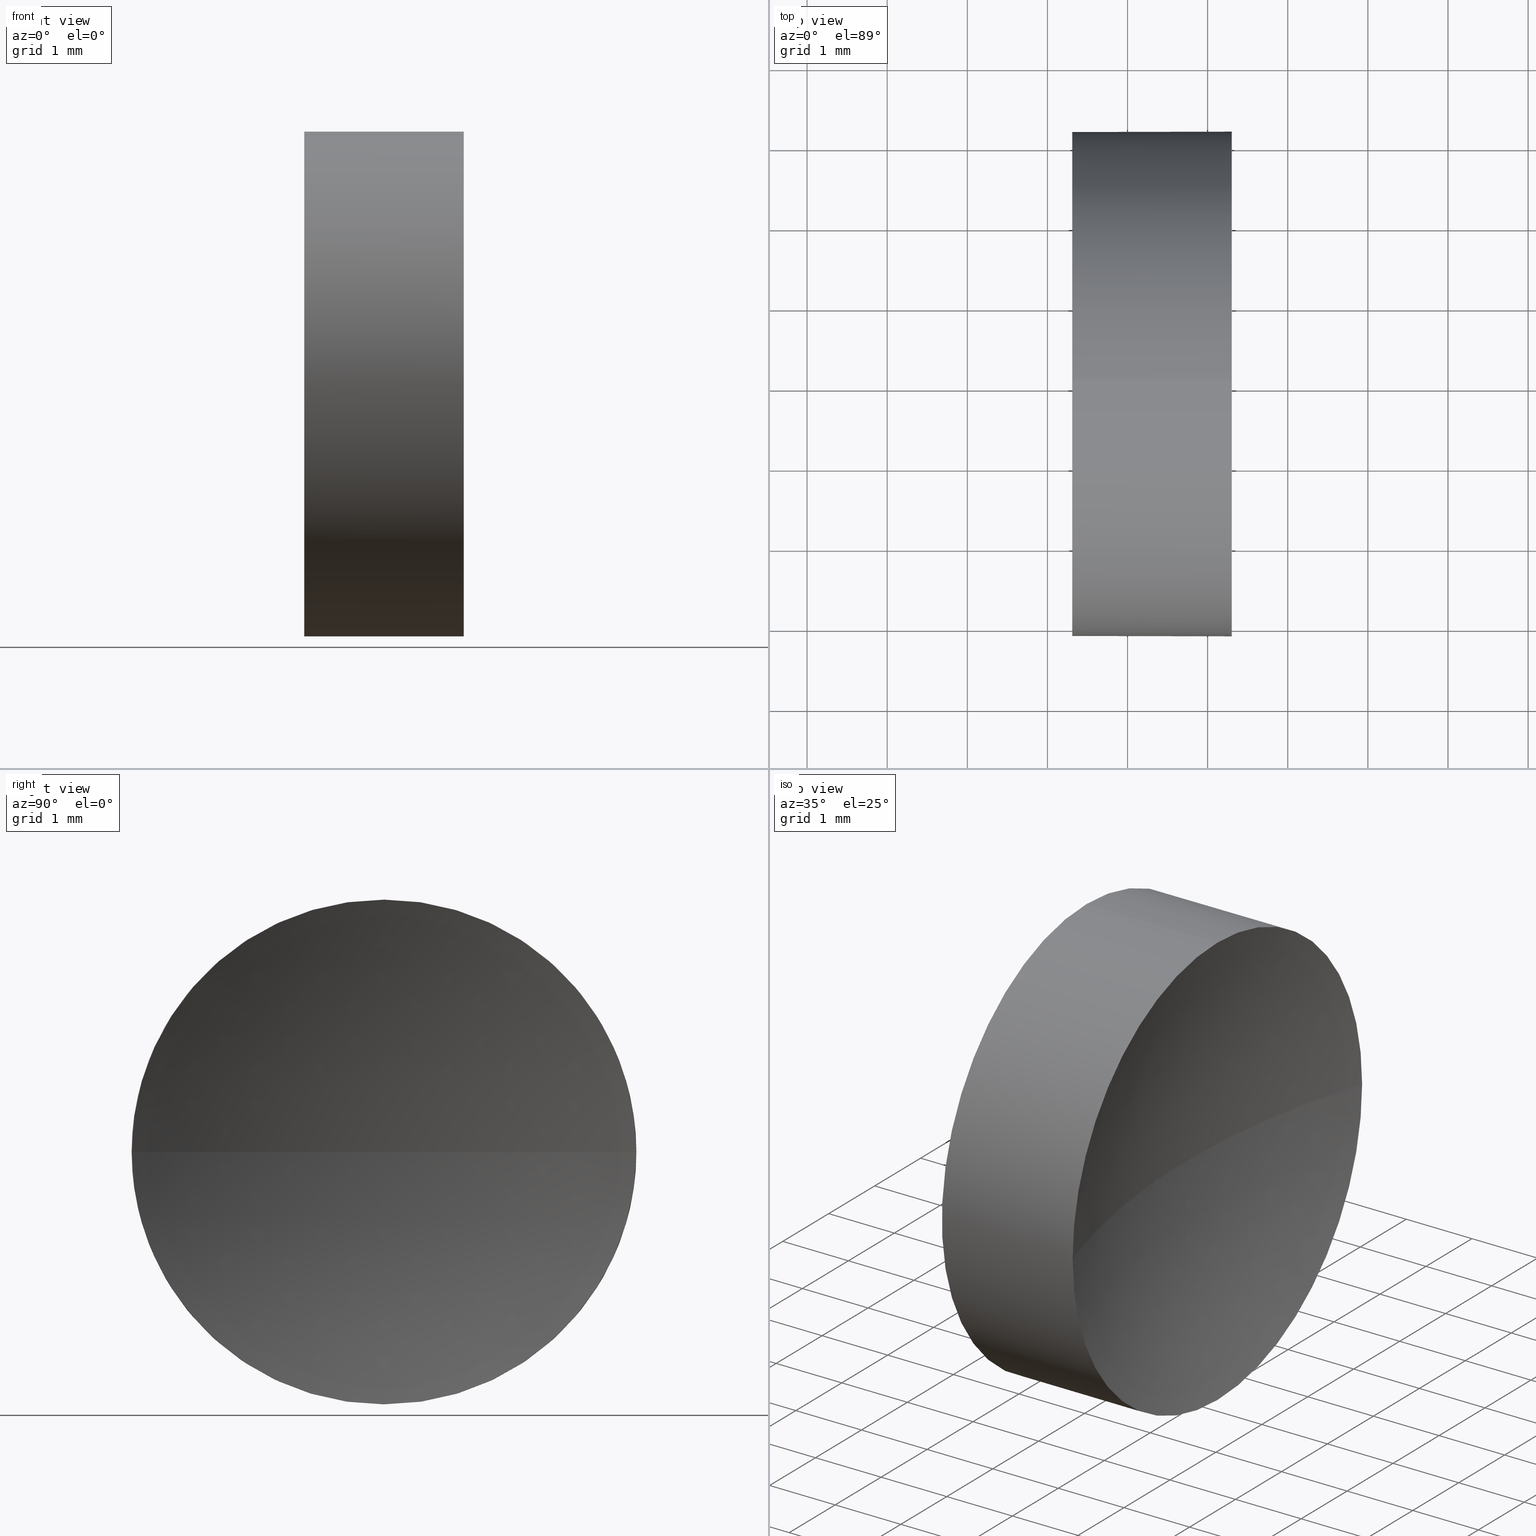
[diagram: canonical four-view strip — front | top / right | iso, engineering-drawing reading convention]
A machine part, canonical four-view strip (front | top / right | iso — engineering-drawing reading convention). The complete STEP part file that produces these views, byte-faithful:
ISO-10303-21;
HEADER;
FILE_DESCRIPTION (( 'STEP AP214' ),
    '1' );
FILE_NAME ('120127.STEP',
    '2019-06-19T01:57:57',
    ( '' ),
    ( '' ),
    'SwSTEP 2.0',
    'SolidWorks 2016',
    '' );
FILE_SCHEMA (( 'AUTOMOTIVE_DESIGN' ));
ENDSEC;

DATA;
#1 = ORIENTED_EDGE ( 'NONE', *, *, #137, .F. ) ;
#2 = CARTESIAN_POINT ( 'NONE',  ( 34.13926883257448700, 13.03112609140304900, 0.0000000000000000000 ) ) ;
#3 = UNCERTAINTY_MEASURE_WITH_UNIT (LENGTH_MEASURE( 1.000000000000000100E-005 ), #29, 'distance_accuracy_value', 'NONE');
#4 = ORIENTED_EDGE ( 'NONE', *, *, #108, .F. ) ;
#5 = DIRECTION ( 'NONE',  ( 0.0000000000000000000, 0.0000000000000000000, 1.000000000000000000 ) ) ;
#6 =( LENGTH_UNIT ( ) NAMED_UNIT ( * ) SI_UNIT ( .MILLI., .METRE. ) );
#7 =( LENGTH_UNIT ( ) NAMED_UNIT ( * ) SI_UNIT ( .MILLI., .METRE. ) );
#8 = DIRECTION ( 'NONE',  ( 0.0000000000000000000, -1.000000000000000000, 0.0000000000000000000 ) ) ;
#9 = UNCERTAINTY_MEASURE_WITH_UNIT (LENGTH_MEASURE( 1.000000000000000100E-005 ), #6, 'distance_accuracy_value', 'NONE');
#10 = PRESENTATION_STYLE_ASSIGNMENT (( #176 ) ) ;
#11 = VERTEX_POINT ( 'NONE', #36 ) ;
#12 = EDGE_CURVE ( 'NONE', #88, #11, #107, .T. ) ;
#13 = FACE_OUTER_BOUND ( 'NONE', #152, .T. ) ;
#14 = CIRCLE ( 'NONE', #125, 10.32999999999999800 ) ;
#15 = PRODUCT_DEFINITION_FORMATION_WITH_SPECIFIED_SOURCE ( '�κ�', '', #82, .NOT_KNOWN. ) ;
#16 = DIRECTION ( 'NONE',  ( 0.0000000000000000000, 0.0000000000000000000, 1.000000000000000000 ) ) ;
#17 = DIRECTION ( 'NONE',  ( 0.0000000000000000000, 0.0000000000000000000, -1.000000000000000000 ) ) ;
#18 = FILL_AREA_STYLE_COLOUR ( '', #169 ) ;
#19 = SURFACE_STYLE_FILL_AREA ( #142 ) ;
#20 = EDGE_CURVE ( 'NONE', #78, #88, #104, .T. ) ;
#21 = FILL_AREA_STYLE ('',( #177 ) ) ;
#22 = ADVANCED_FACE ( 'NONE', ( #13 ), #80, .T. ) ;
#23 = AXIS2_PLACEMENT_3D ( 'NONE', #51, #129, #5 ) ;
#24 = CARTESIAN_POINT ( 'NONE',  ( 34.13926883257448700, 13.03112609140304900, 0.0000000000000000000 ) ) ;
#25 = ORIENTED_EDGE ( 'NONE', *, *, #20, .T. ) ;
#26 = EDGE_CURVE ( 'NONE', #182, #69, #14, .T. ) ;
#27 = CARTESIAN_POINT ( 'NONE',  ( 24.30126090413694200, 13.03112609140304000, 0.0000000000000000000 ) ) ;
#28 = FACE_OUTER_BOUND ( 'NONE', #35, .T. ) ;
#29 =( LENGTH_UNIT ( ) NAMED_UNIT ( * ) SI_UNIT ( .MILLI., .METRE. ) );
#30 = DIRECTION ( 'NONE',  ( 0.0000000000000000000, -1.000000000000000000, -1.224646799147353200E-016 ) ) ;
#31 =( GEOMETRIC_REPRESENTATION_CONTEXT ( 3 ) GLOBAL_UNCERTAINTY_ASSIGNED_CONTEXT ( ( #9 ) ) GLOBAL_UNIT_ASSIGNED_CONTEXT ( ( #6, #145, #119 ) ) REPRESENTATION_CONTEXT ( 'NONE', 'WORKASPACE' ) );
#32 = DIRECTION ( 'NONE',  ( 0.0000000000000000000, 0.0000000000000000000, 1.000000000000000000 ) ) ;
#33 = ADVANCED_FACE ( 'NONE', ( #28 ), #87, .F. ) ;
#34 = SURFACE_STYLE_FILL_AREA ( #21 ) ;
#35 = EDGE_LOOP ( 'NONE', ( #166, #118 ) ) ;
#36 = CARTESIAN_POINT ( 'NONE',  ( 22.30926883257449200, 13.03112609140304000, -3.149999999999998100 ) ) ;
#37 = CARTESIAN_POINT ( 'NONE',  ( 20.68403063513288800, 13.03112609140304000, 0.0000000000000000000 ) ) ;
#38 = VECTOR ( 'NONE', #123, 1000.000000000000000 ) ;
#39 = EDGE_CURVE ( 'NONE', #182, #70, #60, .T. ) ;
#40 = CARTESIAN_POINT ( 'NONE',  ( 24.30126090413694200, 13.03112609140304000, 0.0000000000000000000 ) ) ;
#41 = DIRECTION ( 'NONE',  ( -1.000000000000000000, -0.0000000000000000000, -0.0000000000000000000 ) ) ;
#42 = EDGE_LOOP ( 'NONE', ( #143, #115, #186, #160 ) ) ;
#43 = EDGE_CURVE ( 'NONE', #78, #69, #133, .T. ) ;
#44 = DIRECTION ( 'NONE',  ( -1.000000000000000000, -0.0000000000000000000, -0.0000000000000000000 ) ) ;
#45 = CARTESIAN_POINT ( 'NONE',  ( 20.68403063513288800, 13.03112609140304000, 3.149999999999999900 ) ) ;
#46 = EDGE_LOOP ( 'NONE', ( #106, #173, #111, #149, #122 ) ) ;
#47 = DIRECTION ( 'NONE',  ( 0.0000000000000000000, 0.0000000000000000000, 1.000000000000000000 ) ) ;
#48 = ORIENTED_EDGE ( 'NONE', *, *, #43, .T. ) ;
#49 = COLOUR_RGB ( '',1.000000000000000000, 1.000000000000000000, 1.000000000000000000 ) ;
#50 = AXIS2_PLACEMENT_3D ( 'NONE', #68, #171, #17 ) ;
#51 = CARTESIAN_POINT ( 'NONE',  ( 24.30126090413694200, 13.03112609140304000, 0.0000000000000000000 ) ) ;
#52 = SPHERICAL_SURFACE ( 'NONE', #94, 10.32999999999999800 ) ;
#53 =( NAMED_UNIT ( * ) SI_UNIT ( $, .STERADIAN. ) SOLID_ANGLE_UNIT ( ) );
#54 = DIRECTION ( 'NONE',  ( -1.000000000000000000, -0.0000000000000000000, -0.0000000000000000000 ) ) ;
#55 = DIRECTION ( 'NONE',  ( 0.0000000000000000000, 0.0000000000000000000, 1.000000000000000000 ) ) ;
#56 = DIRECTION ( 'NONE',  ( -1.000000000000000000, -0.0000000000000000000, -0.0000000000000000000 ) ) ;
#57 = PRODUCT_DEFINITION_SHAPE ( 'NONE', 'NONE',  #132 ) ;
#58 = EDGE_CURVE ( 'NONE', #70, #78, #98, .T. ) ;
#59 = DIRECTION ( 'NONE',  ( -1.000000000000000000, -0.0000000000000000000, -0.0000000000000000000 ) ) ;
#60 = CIRCLE ( 'NONE', #134, 3.150000000000001700 ) ;
#61 = AXIS2_PLACEMENT_3D ( 'NONE', #37, #66, #16 ) ;
#62 = LINE ( 'NONE', #45, #95 ) ;
#63 = PRESENTATION_STYLE_ASSIGNMENT (( #113 ) ) ;
#64 = CIRCLE ( 'NONE', #71, 3.149999999999998100 ) ;
#65 = AXIS2_PLACEMENT_3D ( 'NONE', #144, #47, #184 ) ;
#66 = DIRECTION ( 'NONE',  ( -1.000000000000000000, -0.0000000000000000000, -0.0000000000000000000 ) ) ;
#67 = AXIS2_PLACEMENT_3D ( 'NONE', #120, #76, #180 ) ;
#68 = CARTESIAN_POINT ( 'NONE',  ( 22.30926883257449200, 13.03112609140304000, 0.0000000000000000000 ) ) ;
#69 = VERTEX_POINT ( 'NONE', #72 ) ;
#70 = VERTEX_POINT ( 'NONE', #100 ) ;
#71 = AXIS2_PLACEMENT_3D ( 'NONE', #140, #138, #175 ) ;
#72 = CARTESIAN_POINT ( 'NONE',  ( 23.80926883257448900, 13.03112609140304900, 0.0000000000000000000 ) ) ;
#73 =( NAMED_UNIT ( * ) PLANE_ANGLE_UNIT ( ) SI_UNIT ( $, .RADIAN. ) );
#74 = CARTESIAN_POINT ( 'NONE',  ( 24.30126090413694200, 13.03112609140304000, 0.0000000000000000000 ) ) ;
#75 = SHAPE_DEFINITION_REPRESENTATION ( #57, #151 ) ;
#76 = DIRECTION ( 'NONE',  ( 0.0000000000000000000, 0.0000000000000000000, 1.000000000000000000 ) ) ;
#77 = EDGE_CURVE ( 'NONE', #11, #96, #64, .T. ) ;
#78 = VERTEX_POINT ( 'NONE', #157 ) ;
#79 = CIRCLE ( 'NONE', #99, 3.150000000000001700 ) ;
#80 = CYLINDRICAL_SURFACE ( 'NONE', #61, 3.149999999999999900 ) ;
#81 = MECHANICAL_DESIGN_GEOMETRIC_PRESENTATION_REPRESENTATION (  '', ( #161 ), #93 ) ;
#82 = PRODUCT ( '120127', '120127', '', ( #116 ) ) ;
#83 = AXIS2_PLACEMENT_3D ( 'NONE', #163, #89, #32 ) ;
#84 = CARTESIAN_POINT ( 'NONE',  ( 20.68403063513288800, 13.03112609140304000, -3.149999999999999900 ) ) ;
#85 = ORIENTED_EDGE ( 'NONE', *, *, #58, .T. ) ;
#86 = CARTESIAN_POINT ( 'NONE',  ( 24.30126090413694200, 13.03112609140304000, -3.150000000000001200 ) ) ;
#87 = PLANE ( 'NONE',  #50 ) ;
#88 = VERTEX_POINT ( 'NONE', #86 ) ;
#89 = DIRECTION ( 'NONE',  ( -1.000000000000000000, -0.0000000000000000000, -0.0000000000000000000 ) ) ;
#90 = APPLICATION_CONTEXT ( 'automotive_design' ) ;
#91 = APPLICATION_CONTEXT ( 'automotive_design' ) ;
#92 = MANIFOLD_SOLID_BREP ( '��ת1', #139 ) ;
#93 =( GEOMETRIC_REPRESENTATION_CONTEXT ( 3 ) GLOBAL_UNCERTAINTY_ASSIGNED_CONTEXT ( ( #3 ) ) GLOBAL_UNIT_ASSIGNED_CONTEXT ( ( #29, #127, #53 ) ) REPRESENTATION_CONTEXT ( 'NONE', 'WORKASPACE' ) );
#94 = AXIS2_PLACEMENT_3D ( 'NONE', #24, #55, #8 ) ;
#95 = VECTOR ( 'NONE', #59, 1000.000000000000000 ) ;
#96 = VERTEX_POINT ( 'NONE', #153 ) ;
#97 = MECHANICAL_DESIGN_GEOMETRIC_PRESENTATION_REPRESENTATION (  '', ( #168 ), #31 ) ;
#98 = CIRCLE ( 'NONE', #150, 3.150000000000001700 ) ;
#99 = AXIS2_PLACEMENT_3D ( 'NONE', #74, #44, #131 ) ;
#100 = CARTESIAN_POINT ( 'NONE',  ( 24.30126090413694200, 13.03112609140304000, 3.150000000000001200 ) ) ;
#101 = ADVANCED_FACE ( 'NONE', ( #117 ), #128, .T. ) ;
#102 = APPLICATION_PROTOCOL_DEFINITION ( 'draft international standard', 'automotive_design', 1998, #90 ) ;
#103 = ADVANCED_FACE ( 'NONE', ( #172 ), #52, .F. ) ;
#104 = CIRCLE ( 'NONE', #23, 3.150000000000001700 ) ;
#105 = UNCERTAINTY_MEASURE_WITH_UNIT (LENGTH_MEASURE( 1.000000000000000100E-005 ), #7, 'distance_accuracy_value', 'NONE');
#106 = ORIENTED_EDGE ( 'NONE', *, *, #12, .F. ) ;
#107 = LINE ( 'NONE', #84, #38 ) ;
#108 = EDGE_CURVE ( 'NONE', #88, #182, #79, .T. ) ;
#109 = EDGE_LOOP ( 'NONE', ( #136, #48, #155, #4 ) ) ;
#110 = AXIS2_PLACEMENT_3D ( 'NONE', #148, #56, #164 ) ;
#111 = ORIENTED_EDGE ( 'NONE', *, *, #39, .T. ) ;
#112 = DIRECTION ( 'NONE',  ( 0.0000000000000000000, 0.0000000000000000000, 1.000000000000000000 ) ) ;
#113 = SURFACE_STYLE_USAGE ( .BOTH. , #124 ) ;
#114 = CARTESIAN_POINT ( 'NONE',  ( 34.13926883257448700, 13.03112609140304900, 0.0000000000000000000 ) ) ;
#115 = ORIENTED_EDGE ( 'NONE', *, *, #58, .F. ) ;
#116 = PRODUCT_CONTEXT ( 'NONE', #90, 'mechanical' ) ;
#117 = FACE_OUTER_BOUND ( 'NONE', #46, .T. ) ;
#118 = ORIENTED_EDGE ( 'NONE', *, *, #77, .T. ) ;
#119 =( NAMED_UNIT ( * ) SI_UNIT ( $, .STERADIAN. ) SOLID_ANGLE_UNIT ( ) );
#120 = CARTESIAN_POINT ( 'NONE',  ( 0.0000000000000000000, 0.0000000000000000000, 0.0000000000000000000 ) ) ;
#121 = ORIENTED_EDGE ( 'NONE', *, *, #12, .T. ) ;
#122 = ORIENTED_EDGE ( 'NONE', *, *, #77, .F. ) ;
#123 = DIRECTION ( 'NONE',  ( -1.000000000000000000, -0.0000000000000000000, -0.0000000000000000000 ) ) ;
#124 = SURFACE_SIDE_STYLE ('',( #19 ) ) ;
#125 = AXIS2_PLACEMENT_3D ( 'NONE', #2, #126, #141 ) ;
#126 = DIRECTION ( 'NONE',  ( 0.0000000000000000000, 0.0000000000000000000, -1.000000000000000000 ) ) ;
#127 =( NAMED_UNIT ( * ) PLANE_ANGLE_UNIT ( ) SI_UNIT ( $, .RADIAN. ) );
#128 = CYLINDRICAL_SURFACE ( 'NONE', #110, 3.149999999999999900 ) ;
#129 = DIRECTION ( 'NONE',  ( -1.000000000000000000, -0.0000000000000000000, -0.0000000000000000000 ) ) ;
#130 = ADVANCED_FACE ( 'NONE', ( #181 ), #185, .F. ) ;
#131 = DIRECTION ( 'NONE',  ( 0.0000000000000000000, 0.0000000000000000000, 1.000000000000000000 ) ) ;
#132 = PRODUCT_DEFINITION ( 'δ֪', '', #15, #165 ) ;
#133 = CIRCLE ( 'NONE', #147, 10.32999999999999800 ) ;
#134 = AXIS2_PLACEMENT_3D ( 'NONE', #40, #41, #112 ) ;
#135 = CIRCLE ( 'NONE', #83, 3.149999999999998100 ) ;
#136 = ORIENTED_EDGE ( 'NONE', *, *, #20, .F. ) ;
#137 = EDGE_CURVE ( 'NONE', #70, #96, #62, .T. ) ;
#138 = DIRECTION ( 'NONE',  ( -1.000000000000000000, -0.0000000000000000000, -0.0000000000000000000 ) ) ;
#139 = CLOSED_SHELL ( 'NONE', ( #22, #103, #130, #101, #33 ) ) ;
#140 = CARTESIAN_POINT ( 'NONE',  ( 22.30926883257449200, 13.03112609140304000, 0.0000000000000000000 ) ) ;
#141 = DIRECTION ( 'NONE',  ( -1.000000000000000000, 0.0000000000000000000, 0.0000000000000000000 ) ) ;
#142 = FILL_AREA_STYLE ('',( #18 ) ) ;
#143 = ORIENTED_EDGE ( 'NONE', *, *, #43, .F. ) ;
#144 = CARTESIAN_POINT ( 'NONE',  ( 34.13926883257448700, 13.03112609140304900, 0.0000000000000000000 ) ) ;
#145 =( NAMED_UNIT ( * ) PLANE_ANGLE_UNIT ( ) SI_UNIT ( $, .RADIAN. ) );
#146 = ORIENTED_EDGE ( 'NONE', *, *, #167, .F. ) ;
#147 = AXIS2_PLACEMENT_3D ( 'NONE', #114, #174, #30 ) ;
#148 = CARTESIAN_POINT ( 'NONE',  ( 20.68403063513288800, 13.03112609140304000, 0.0000000000000000000 ) ) ;
#149 = ORIENTED_EDGE ( 'NONE', *, *, #137, .T. ) ;
#150 = AXIS2_PLACEMENT_3D ( 'NONE', #27, #54, #156 ) ;
#151 = ADVANCED_BREP_SHAPE_REPRESENTATION ( '120127', ( #92, #67 ), #170 ) ;
#152 = EDGE_LOOP ( 'NONE', ( #25, #121, #146, #1, #85 ) ) ;
#153 = CARTESIAN_POINT ( 'NONE',  ( 22.30926883257449200, 13.03112609140304000, 3.149999999999998100 ) ) ;
#154 = PRESENTATION_LAYER_ASSIGNMENT (  '', '', ( #161 ) ) ;
#155 = ORIENTED_EDGE ( 'NONE', *, *, #26, .F. ) ;
#156 = DIRECTION ( 'NONE',  ( 0.0000000000000000000, 0.0000000000000000000, 1.000000000000000000 ) ) ;
#157 = CARTESIAN_POINT ( 'NONE',  ( 24.30126090413694200, 16.18112609140304100, 3.857637417314157300E-016 ) ) ;
#158 = SURFACE_SIDE_STYLE ('',( #34 ) ) ;
#159 =( NAMED_UNIT ( * ) SI_UNIT ( $, .STERADIAN. ) SOLID_ANGLE_UNIT ( ) );
#160 = ORIENTED_EDGE ( 'NONE', *, *, #26, .T. ) ;
#161 = STYLED_ITEM ( 'NONE', ( #63 ), #92 ) ;
#162 = APPLICATION_PROTOCOL_DEFINITION ( 'draft international standard', 'automotive_design', 1998, #91 ) ;
#163 = CARTESIAN_POINT ( 'NONE',  ( 22.30926883257449200, 13.03112609140304000, 0.0000000000000000000 ) ) ;
#164 = DIRECTION ( 'NONE',  ( 0.0000000000000000000, 0.0000000000000000000, 1.000000000000000000 ) ) ;
#165 = PRODUCT_DEFINITION_CONTEXT ( 'detailed design', #91, 'design' ) ;
#166 = ORIENTED_EDGE ( 'NONE', *, *, #167, .T. ) ;
#167 = EDGE_CURVE ( 'NONE', #96, #11, #135, .T. ) ;
#168 = STYLED_ITEM ( 'NONE', ( #10 ), #151 ) ;
#169 = COLOUR_RGB ( '',1.000000000000000000, 1.000000000000000000, 1.000000000000000000 ) ;
#170 =( GEOMETRIC_REPRESENTATION_CONTEXT ( 3 ) GLOBAL_UNCERTAINTY_ASSIGNED_CONTEXT ( ( #105 ) ) GLOBAL_UNIT_ASSIGNED_CONTEXT ( ( #7, #73, #159 ) ) REPRESENTATION_CONTEXT ( 'NONE', 'WORKASPACE' ) );
#171 = DIRECTION ( 'NONE',  ( 1.000000000000000000, 0.0000000000000000000, 0.0000000000000000000 ) ) ;
#172 = FACE_OUTER_BOUND ( 'NONE', #109, .T. ) ;
#173 = ORIENTED_EDGE ( 'NONE', *, *, #108, .T. ) ;
#174 = DIRECTION ( 'NONE',  ( 0.0000000000000000000, -1.224646799147353200E-016, 1.000000000000000000 ) ) ;
#175 = DIRECTION ( 'NONE',  ( 0.0000000000000000000, 0.0000000000000000000, 1.000000000000000000 ) ) ;
#176 = SURFACE_STYLE_USAGE ( .BOTH. , #158 ) ;
#177 = FILL_AREA_STYLE_COLOUR ( '', #49 ) ;
#178 = PRODUCT_RELATED_PRODUCT_CATEGORY ( 'part', '', ( #82 ) ) ;
#179 = CARTESIAN_POINT ( 'NONE',  ( 24.30126090413694200, 9.881126091403045200, 0.0000000000000000000 ) ) ;
#180 = DIRECTION ( 'NONE',  ( 1.000000000000000000, 0.0000000000000000000, 0.0000000000000000000 ) ) ;
#181 = FACE_OUTER_BOUND ( 'NONE', #42, .T. ) ;
#182 = VERTEX_POINT ( 'NONE', #179 ) ;
#183 = PRESENTATION_LAYER_ASSIGNMENT (  '', '', ( #168 ) ) ;
#184 = DIRECTION ( 'NONE',  ( 0.0000000000000000000, -1.000000000000000000, 0.0000000000000000000 ) ) ;
#185 = SPHERICAL_SURFACE ( 'NONE', #65, 10.32999999999999800 ) ;
#186 = ORIENTED_EDGE ( 'NONE', *, *, #39, .F. ) ;
ENDSEC;
END-ISO-10303-21;
